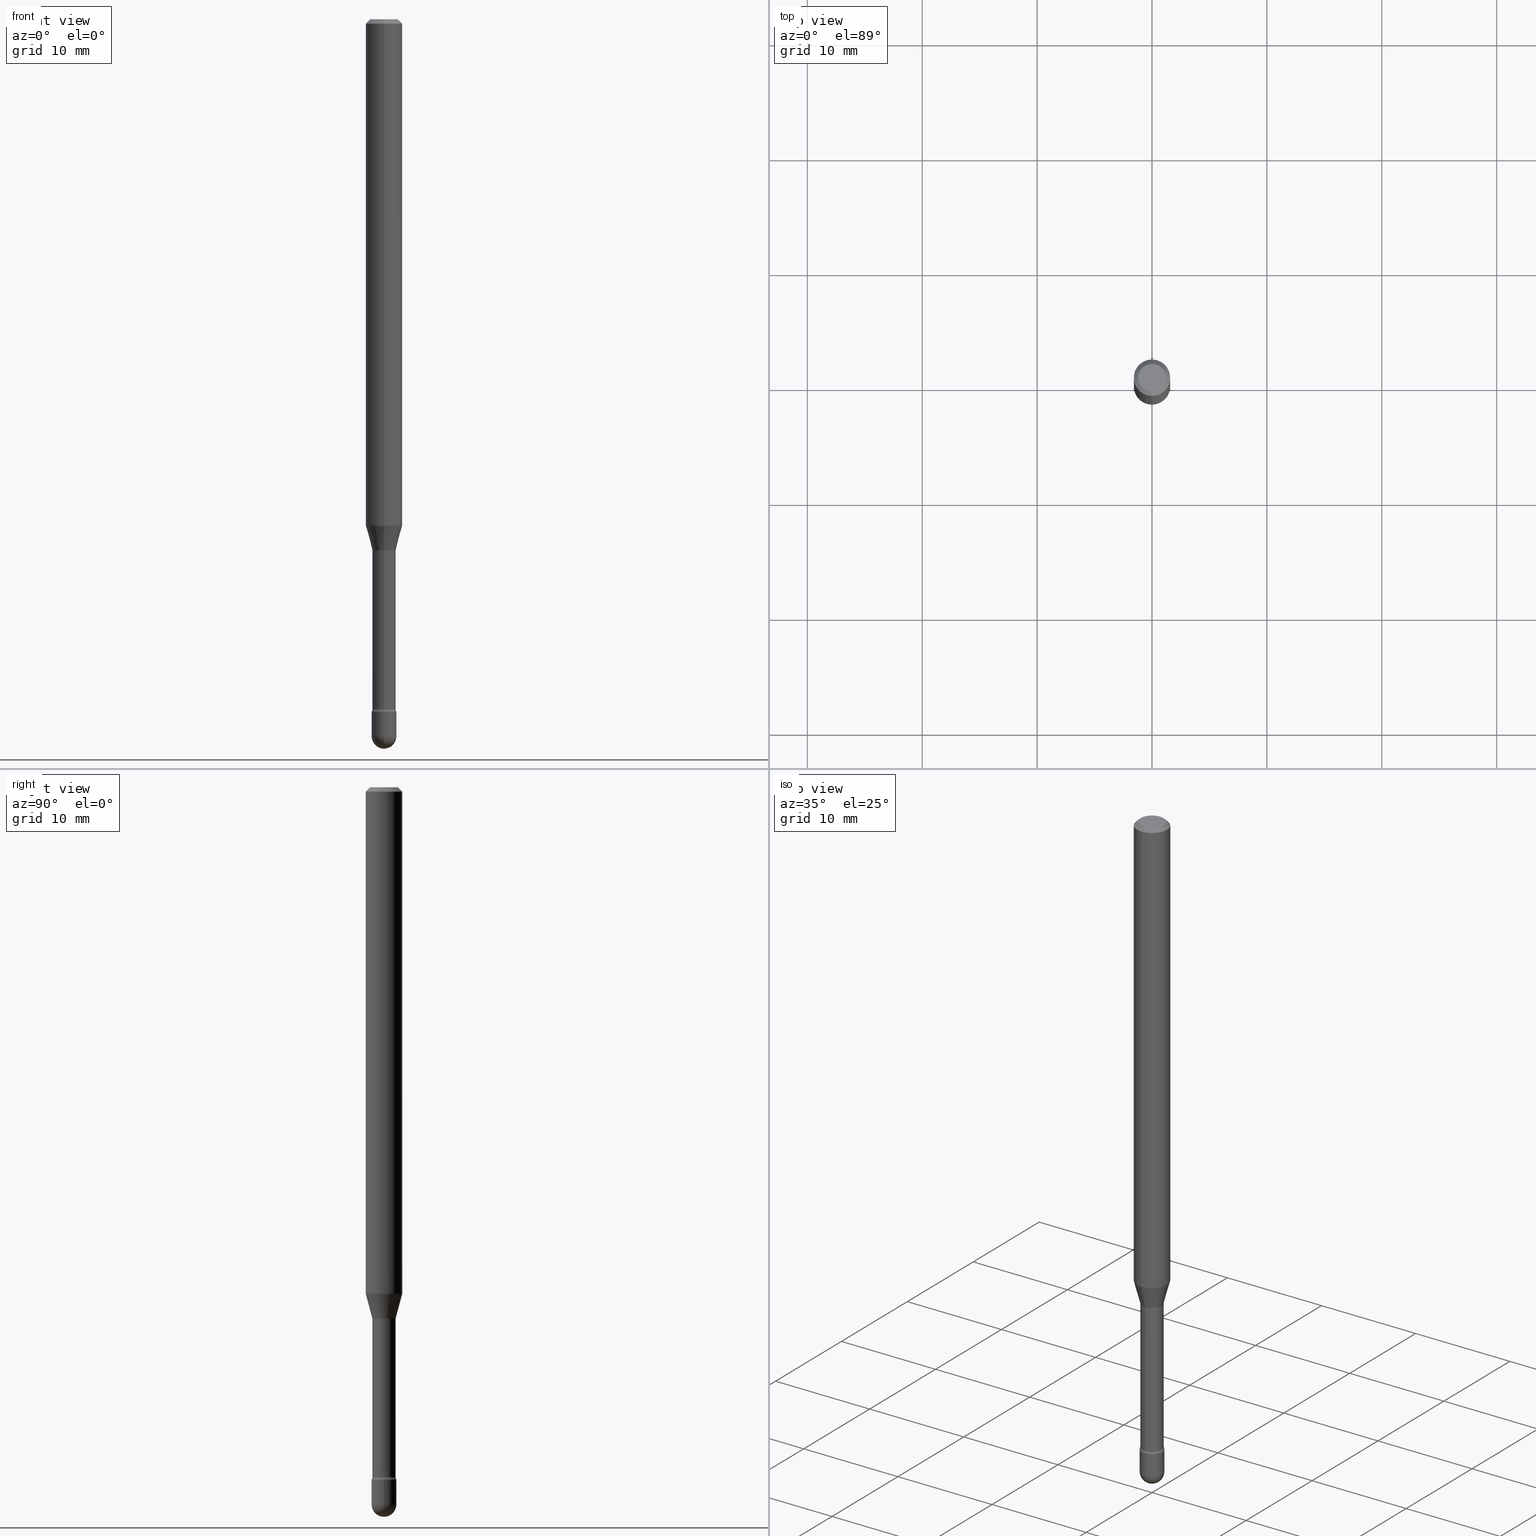
[diagram: canonical four-view strip — front | top / right | iso, engineering-drawing reading convention]
A machine part, canonical four-view strip (front | top / right | iso — engineering-drawing reading convention). The complete STEP part file that produces these views, byte-faithful:
ISO-10303-21;
HEADER;
FILE_DESCRIPTION (( 'STEP AP203' ),
    '1' );
FILE_NAME ('03878.STEP',
    '2024-04-09T20:54:38',
    ( '' ),
    ( '' ),
    'SwSTEP 2.0',
    'SolidWorks 2023',
    '' );
FILE_SCHEMA (( 'CONFIG_CONTROL_DESIGN' ));
ENDSEC;

DATA;
#1 = DIRECTION ( 'NONE',  ( 6.982962677686265922E-15, 1.000000000000000000, -3.491429772909851557E-15 ) ) ;
#2 = EDGE_CURVE ( 'NONE', #259, #158, #44, .T. ) ;
#3 = ORIENTED_EDGE ( 'NONE', *, *, #367, .T. ) ;
#4 = CARTESIAN_POINT ( 'NONE',  ( 6.115489243827347903E-29, -8.726100972659677042E-15, -2.500000000000000000 ) ) ;
#5 = ADVANCED_FACE ( 'NONE', ( #201 ), #177, .F. ) ;
#6 = ORIENTED_EDGE ( 'NONE', *, *, #47, .F. ) ;
#7 = DIRECTION ( 'NONE',  ( 1.000000000000000000, -6.982962677686265922E-15, 4.883557194083112340E-29 ) ) ;
#8 = EDGE_LOOP ( 'NONE', ( #306, #489, #99, #366 ) ) ;
#9 = LENGTH_MEASURE_WITH_UNIT ( LENGTH_MEASURE( 0.02539999999999999897 ), #480 );
#10 = CIRCLE ( 'NONE', #418, 0.04749999999999999362 ) ;
#11 = VECTOR ( 'NONE', #263, 39.37007874015748143 ) ;
#12 = COORDINATED_UNIVERSAL_TIME_OFFSET ( 5, 0, .BEHIND. ) ;
#13 = LINE ( 'NONE', #171, #104 ) ;
#14 = ORIENTED_EDGE ( 'NONE', *, *, #247, .T. ) ;
#15 = DIMENSIONAL_EXPONENTS ( 1.000000000000000000, 0.000000000000000000, 0.000000000000000000, 0.000000000000000000, 0.000000000000000000, 0.000000000000000000, 0.000000000000000000 ) ;
#16 = CC_DESIGN_PERSON_AND_ORGANIZATION_ASSIGNMENT ( #528, #354, ( #322 ) ) ;
#17 = MANIFOLD_SOLID_BREP ( 'Body-Move/Copy2[1]', #286 ) ;
#18 = DIRECTION ( 'NONE',  ( 7.105427357601001859E-15, 1.000000000000000000, 0.000000000000000000 ) ) ;
#19 = CARTESIAN_POINT ( 'NONE',  ( 0.04250000000000000999, -8.727830476773152219E-15, -2.457500000000000018 ) ) ;
#20 = ORIENTED_EDGE ( 'NONE', *, *, #247, .F. ) ;
#21 = DIRECTION ( 'NONE',  ( -2.445504814483899766E-29, 3.491429772909851557E-15, 1.000000000000000000 ) ) ;
#22 = CARTESIAN_POINT ( 'NONE',  ( 6.009739591199973545E-29, -8.580315390207031617E-15, -2.457500000000000018 ) ) ;
#23 = VERTEX_POINT ( 'NONE', #321 ) ;
#24 = AXIS2_PLACEMENT_3D ( 'NONE', #111, #195, #453 ) ;
#25 = MANIFOLD_SOLID_BREP ( 'Body-Move/Copy2[2]', #115 ) ;
#26 = ORIENTED_EDGE ( 'NONE', *, *, #70, .T. ) ;
#27 = SPHERICAL_SURFACE ( 'NONE', #289, 0.04249999999999994754 ) ;
#28 = DIRECTION ( 'NONE',  ( -2.445468806185136597E-29, 3.491481338843145583E-15, 1.000000000000000000 ) ) ;
#29 = EDGE_CURVE ( 'NONE', #450, #174, #82, .T. ) ;
#30 = DIRECTION ( 'NONE',  ( -1.000000000000000000, 6.982962677686265922E-15, -4.883557194083112340E-29 ) ) ;
#31 = CIRCLE ( 'NONE', #244, 0.04249999999999999611 ) ;
#32 = DIRECTION ( 'NONE',  ( -2.445468806185136597E-29, 3.491481338843145583E-15, 1.000000000000000000 ) ) ;
#33 = CARTESIAN_POINT ( 'NONE',  ( 4.245010590049123463E-29, -6.060571327700693261E-15, -1.735842254289322373 ) ) ;
#34 = ADVANCED_FACE ( 'NONE', ( #237 ), #154, .T. ) ;
#35 = ORIENTED_EDGE ( 'NONE', *, *, #506, .T. ) ;
#36 = CARTESIAN_POINT ( 'NONE',  ( -1.169113584055446105E-44, 1.669184350826100908E-30, 4.780733988912460139E-16 ) ) ;
#37 = AXIS2_PLACEMENT_3D ( 'NONE', #256, #221, #390 ) ;
#38 = AXIS2_PLACEMENT_3D ( 'NONE', #382, #164, #129 ) ;
#39 = CALENDAR_DATE ( 2024, 9, 4 ) ;
#40 = VERTEX_POINT ( 'NONE', #548 ) ;
#41 = COORDINATED_UNIVERSAL_TIME_OFFSET ( 5, 0, .BEHIND. ) ;
#42 = EDGE_CURVE ( 'NONE', #179, #23, #428, .T. ) ;
#43 = LINE ( 'NONE', #424, #566 ) ;
#44 = CIRCLE ( 'NONE', #359, 0.04249999999999999611 ) ;
#45 = AXIS2_PLACEMENT_3D ( 'NONE', #176, #86, #426 ) ;
#46 = CIRCLE ( 'NONE', #555, 0.04250000000000000999 ) ;
#47 = EDGE_CURVE ( 'NONE', #469, #492, #260, .T. ) ;
#48 = DIRECTION ( 'NONE',  ( -2.445504814483899766E-29, 3.491429772909851557E-15, 1.000000000000000000 ) ) ;
#49 =( CONVERSION_BASED_UNIT ( 'INCH', #9 ) LENGTH_UNIT ( ) NAMED_UNIT ( #15 ) );
#50 = DIRECTION ( 'NONE',  ( 1.000000000000000000, -6.982962677686276177E-15, 0.000000000000000000 ) ) ;
#51 = ORIENTED_EDGE ( 'NONE', *, *, #301, .F. ) ;
#52 = CARTESIAN_POINT ( 'NONE',  ( 2.023814699000571221E-45, -2.888893509381744953E-31, -8.274948145337680519E-17 ) ) ;
#53 = CALENDAR_DATE ( 2024, 9, 4 ) ;
#54 = LINE ( 'NONE', #355, #394 ) ;
#55 = AXIS2_PLACEMENT_3D ( 'NONE', #153, #493, #549 ) ;
#56 = VERTEX_POINT ( 'NONE', #285 ) ;
#57 = AXIS2_PLACEMENT_3D ( 'NONE', #357, #347, #474 ) ;
#59 = CARTESIAN_POINT ( 'NONE',  ( 3.019806626981004834E-16, 0.04249999999999171107, -2.372000000000000330 ) ) ;
#58 = LOCAL_TIME ( 16, 54, 38.00000000000000000, #511 ) ;
#60 = DIRECTION ( 'NONE',  ( -2.445468806185136597E-29, 3.491481338843145583E-15, 1.000000000000000000 ) ) ;
#61 = CARTESIAN_POINT ( 'NONE',  ( -1.169113584055446105E-44, 1.669184350826100908E-30, 4.780733988912460139E-16 ) ) ;
#62 = EDGE_LOOP ( 'NONE', ( #396, #515, #524, #434 ) ) ;
#63 = CARTESIAN_POINT ( 'NONE',  ( 4.446153966297855520E-29, -6.347742290644244223E-15, -1.818092501787273330 ) ) ;
#64 = DIRECTION ( 'NONE',  ( -6.982962677686265133E-15, -1.000000000000000000, 3.491429772909850768E-15 ) ) ;
#65 = DIRECTION ( 'NONE',  ( -6.982962677686266711E-15, -1.000000000000000000, 3.491429772909852346E-15 ) ) ;
#66 = ORIENTED_EDGE ( 'NONE', *, *, #208, .F. ) ;
#67 = AXIS2_PLACEMENT_3D ( 'NONE', #284, #502, #246 ) ;
#68 = APPROVAL_PERSON_ORGANIZATION ( #341, #220, #332 ) ;
#69 = CARTESIAN_POINT ( 'NONE',  ( -0.04250000000000000999, -8.129073900273444693E-15, -2.457500000000000018 ) ) ;
#70 = EDGE_CURVE ( 'NONE', #56, #179, #497, .T. ) ;
#71 = ORIENTED_EDGE ( 'NONE', *, *, #404, .T. ) ;
#72 = ORIENTED_EDGE ( 'NONE', *, *, #501, .F. ) ;
#73 = EDGE_CURVE ( 'NONE', #471, #56, #564, .T. ) ;
#74 = DIRECTION ( 'NONE',  ( 1.000000000000000000, -7.105427357601001070E-15, 4.926314877041531019E-29 ) ) ;
#75 = EDGE_CURVE ( 'NONE', #174, #450, #203, .T. ) ;
#76 = DIRECTION ( 'NONE',  ( -1.000000000000000000, 7.105427357601001070E-15, -4.926315508542082329E-29 ) ) ;
#77 = CIRCLE ( 'NONE', #299, 0.01499999999999999424 ) ;
#78 = DIRECTION ( 'NONE',  ( 7.105427357601001859E-15, 1.000000000000000000, 0.000000000000000000 ) ) ;
#79 = DIRECTION ( 'NONE',  ( -2.445468806185136597E-29, 3.491481338843145583E-15, 1.000000000000000000 ) ) ;
#80 = CARTESIAN_POINT ( 'NONE',  ( -1.169113584055446105E-44, 1.669184350826100908E-30, 4.780733988912460139E-16 ) ) ;
#81 = EDGE_CURVE ( 'NONE', #391, #87, #114, .T. ) ;
#82 = CIRCLE ( 'NONE', #280, 0.06250000000000000000 ) ;
#83 = DATE_TIME_ROLE ( 'creation_date' ) ;
#84 = CARTESIAN_POINT ( 'NONE',  ( -3.019806626979822035E-16, -0.04250000000000855871, -2.457500000000000018 ) ) ;
#85 = CARTESIAN_POINT ( 'NONE',  ( -4.364351673553916201E-16, -0.06250000000000000000, 6.962877596981117363E-16 ) ) ;
#86 = DIRECTION ( 'NONE',  ( -2.445468806185136597E-29, 3.491481338843145583E-15, 1.000000000000000000 ) ) ;
#87 = VERTEX_POINT ( 'NONE', #550 ) ;
#88 = ORIENTED_EDGE ( 'NONE', *, *, #287, .F. ) ;
#89 = EDGE_CURVE ( 'NONE', #402, #475, #463, .T. ) ;
#90 = DIRECTION ( 'NONE',  ( -1.000000000000000000, 6.982962677686265922E-15, -4.883557194083112340E-29 ) ) ;
#91 = AXIS2_PLACEMENT_3D ( 'NONE', #507, #32, #198 ) ;
#92 = AXIS2_PLACEMENT_3D ( 'NONE', #145, #362, #541 ) ;
#93 = CARTESIAN_POINT ( 'NONE',  ( 3.668257221725869898E-31, -5.237144659364806746E-17, -0.01500000000000008271 ) ) ;
#94 = DIRECTION ( 'NONE',  ( -6.982962677686266711E-15, -1.000000000000000000, 0.000000000000000000 ) ) ;
#95 = ORIENTED_EDGE ( 'NONE', *, *, #525, .F. ) ;
#96 = PERSON_AND_ORGANIZATION_ROLE ( 'creator' ) ;
#97 = DIRECTION ( 'NONE',  ( -1.807323732225328562E-15, -0.2588190451025179639, 0.9659258262890690894 ) ) ;
#98 = EDGE_CURVE ( 'NONE', #308, #460, #486, .T. ) ;
#99 = ORIENTED_EDGE ( 'NONE', *, *, #269, .T. ) ;
#100 = FACE_OUTER_BOUND ( 'NONE', #438, .T. ) ;
#101 = LINE ( 'NONE', #273, #448 ) ;
#102 = EDGE_LOOP ( 'NONE', ( #518, #422 ) ) ;
#103 = AXIS2_PLACEMENT_3D ( 'NONE', #265, #482, #529 ) ;
#104 = VECTOR ( 'NONE', #344, 39.37007874015748143 ) ;
#105 = DIRECTION ( 'NONE',  ( -6.982962677686265922E-15, -1.000000000000000000, 3.483106191921935554E-15 ) ) ;
#106 = ORIENTED_EDGE ( 'NONE', *, *, #169, .T. ) ;
#107 = ORIENTED_EDGE ( 'NONE', *, *, #328, .F. ) ;
#108 = EDGE_CURVE ( 'NONE', #475, #151, #350, .T. ) ;
#109 = DIRECTION ( 'NONE',  ( -2.445504814483899766E-29, 3.491429772909851557E-15, 1.000000000000000000 ) ) ;
#110 = AXIS2_PLACEMENT_3D ( 'NONE', #314, #488, #234 ) ;
#111 = CARTESIAN_POINT ( 'NONE',  ( 5.780192113673480765E-29, -8.252582428684399354E-15, -2.363633549139569467 ) ) ;
#112 = CC_DESIGN_PERSON_AND_ORGANIZATION_ASSIGNMENT ( #137, #250, ( #527 ) ) ;
#113 = CARTESIAN_POINT ( 'NONE',  ( 5.800737419955810236E-29, -8.281671421342168803E-15, -2.371999999999999886 ) ) ;
#114 = LINE ( 'NONE', #544, #170 ) ;
#115 = CLOSED_SHELL ( 'NONE', ( #152, #462, #304, #552, #535, #119, #202, #34, #457, #365, #560, #5, #127, #490 ) ) ;
#116 = CIRCLE ( 'NONE', #92, 0.04249999999999999611 ) ;
#117 = ORIENTED_EDGE ( 'NONE', *, *, #42, .T. ) ;
#118 = COORDINATED_UNIVERSAL_TIME_OFFSET ( 5, 0, .BEHIND. ) ;
#119 = ADVANCED_FACE ( 'NONE', ( #386 ), #197, .T. ) ;
#120 = APPROVAL ( #291, 'UNSPECIFIED' ) ;
#121 = EDGE_LOOP ( 'NONE', ( #356, #239, #3, #51 ) ) ;
#122 = DIRECTION ( 'NONE',  ( -2.445468806185136877E-29, 3.491481338843145188E-15, 1.000000000000000000 ) ) ;
#123 = AXIS2_PLACEMENT_3D ( 'NONE', #61, #311, #483 ) ;
#124 = CC_DESIGN_SECURITY_CLASSIFICATION ( #527, ( #178 ) ) ;
#125 = PERSON_AND_ORGANIZATION ( #248, #226 ) ;
#126 = ORIENTED_EDGE ( 'NONE', *, *, #108, .F. ) ;
#127 = ADVANCED_FACE ( 'NONE', ( #142 ), #146, .T. ) ;
#128 = ORIENTED_EDGE ( 'NONE', *, *, #525, .T. ) ;
#129 = DIRECTION ( 'NONE',  ( -6.982962677686265922E-15, -1.000000000000000000, 3.483106191921935554E-15 ) ) ;
#130 = PLANE ( 'NONE',  #361 ) ;
#131 = DIRECTION ( 'NONE',  ( -6.982962677686265922E-15, -1.000000000000000000, 6.751786635945950546E-15 ) ) ;
#132 = FACE_OUTER_BOUND ( 'NONE', #388, .T. ) ;
#133 = DIRECTION ( 'NONE',  ( -2.445468806185136597E-29, 3.491481338843145583E-15, 1.000000000000000000 ) ) ;
#134 = CIRCLE ( 'NONE', #57, 0.01500000000000002720 ) ;
#135 = APPROVAL_PERSON_ORGANIZATION ( #125, #120, #556 ) ;
#136 = ORIENTED_EDGE ( 'NONE', *, *, #108, .T. ) ;
#137 = PERSON_AND_ORGANIZATION ( #248, #226 ) ;
#138 = DIRECTION ( 'NONE',  ( -2.445504814483899766E-29, 3.491429772909851557E-15, 1.000000000000000000 ) ) ;
#139 = ORIENTED_EDGE ( 'NONE', *, *, #140, .F. ) ;
#140 = EDGE_CURVE ( 'NONE', #460, #450, #101, .T. ) ;
#141 = CARTESIAN_POINT ( 'NONE',  ( 3.840629472727447874E-16, 0.04749999999999999362, -2.485923956665947374E-16 ) ) ;
#142 = FACE_OUTER_BOUND ( 'NONE', #121, .T. ) ;
#143 = VERTEX_POINT ( 'NONE', #229 ) ;
#144 = CARTESIAN_POINT ( 'NONE',  ( -2.825384392229684454E-16, -0.04046111260567033380, -1.818092501787273108 ) ) ;
#145 = CARTESIAN_POINT ( 'NONE',  ( 5.800737419955810236E-29, -8.281671421342168803E-15, -2.371999999999999886 ) ) ;
#146 = CYLINDRICAL_SURFACE ( 'NONE', #123, 0.03995000000000004103 ) ;
#147 = ORIENTED_EDGE ( 'NONE', *, *, #506, .F. ) ;
#148 = AXIS2_PLACEMENT_3D ( 'NONE', #430, #48, #389 ) ;
#149 = DIRECTION ( 'NONE',  ( -2.445504814483899766E-29, 3.491429772909851557E-15, 1.000000000000000000 ) ) ;
#150 = VECTOR ( 'NONE', #194, 39.37007874015748143 ) ;
#151 = VERTEX_POINT ( 'NONE', #19 ) ;
#152 = ADVANCED_FACE ( 'NONE', ( #186 ), #253, .F. ) ;
#153 = CARTESIAN_POINT ( 'NONE',  ( 0.000000000000000000, 0.000000000000000000, 0.000000000000000000 ) ) ;
#154 = CYLINDRICAL_SURFACE ( 'NONE', #505, 0.06250000000000000000 ) ;
#155 = VECTOR ( 'NONE', #242, 39.37007874015748143 ) ;
#156 = AXIS2_PLACEMENT_3D ( 'NONE', #36, #166, #297 ) ;
#157 = CC_DESIGN_DATE_AND_TIME_ASSIGNMENT ( #292, #83, ( #322 ) ) ;
#158 = VERTEX_POINT ( 'NONE', #536 ) ;
#159 = DIRECTION ( 'NONE',  ( -2.445504814483899766E-29, 3.491429772909851557E-15, 1.000000000000000000 ) ) ;
#160 = ORIENTED_EDGE ( 'NONE', *, *, #367, .F. ) ;
#161 = AXIS2_PLACEMENT_3D ( 'NONE', #113, #327, #504 ) ;
#162 = AXIS2_PLACEMENT_3D ( 'NONE', #80, #149, #64 ) ;
#163 = EDGE_CURVE ( 'NONE', #143, #391, #10, .T. ) ;
#164 = DIRECTION ( 'NONE',  ( -2.445504814483899766E-29, 3.491429772909851557E-15, 1.000000000000000000 ) ) ;
#165 = DATE_TIME_ROLE ( 'classification_date' ) ;
#166 = DIRECTION ( 'NONE',  ( -2.445504814483899766E-29, 3.491429772909851557E-15, 1.000000000000000000 ) ) ;
#167 = CALENDAR_DATE ( 2024, 9, 4 ) ;
#168 = CARTESIAN_POINT ( 'NONE',  ( -2.789693589735218069E-16, -0.03995000000000637624, -1.821974787463811030 ) ) ;
#169 = EDGE_CURVE ( 'NONE', #460, #308, #324, .T. ) ;
#170 = VECTOR ( 'NONE', #326, 39.37007874015748143 ) ;
#171 = CARTESIAN_POINT ( 'NONE',  ( -2.789693589735665748E-16, -0.03995000000000004103, 6.175560183189947487E-16 ) ) ;
#172 = LINE ( 'NONE', #343, #11 ) ;
#173 = CARTESIAN_POINT ( 'NONE',  ( 3.316907271900976096E-16, 0.04749999999999999362, 3.181904450571665367E-17 ) ) ;
#174 = VERTEX_POINT ( 'NONE', #252 ) ;
#175 = CARTESIAN_POINT ( 'NONE',  ( 6.009739591199973545E-29, -8.580315390207031617E-15, -2.457500000000000018 ) ) ;
#176 = CARTESIAN_POINT ( 'NONE',  ( 6.009739591199973545E-29, -8.580315390207031617E-15, -2.457500000000000018 ) ) ;
#177 = TOROIDAL_SURFACE ( 'NONE', #24, 0.05495000000000006130, 0.01499999999999999424 ) ;
#178 = PRODUCT_DEFINITION_FORMATION_WITH_SPECIFIED_SOURCE ( 'ANY', '', #319, .NOT_KNOWN. ) ;
#179 = VERTEX_POINT ( 'NONE', #59 ) ;
#180 = APPROVAL ( #182, 'UNSPECIFIED' ) ;
#181 = CARTESIAN_POINT ( 'NONE',  ( 6.009739591199973545E-29, -8.580315390207031617E-15, -2.457500000000000018 ) ) ;
#182 = APPROVAL_STATUS ( 'not_yet_approved' ) ;
#183 = DIRECTION ( 'NONE',  ( 1.000000000000000000, -6.982962677686273810E-15, 0.000000000000000000 ) ) ;
#184 = EDGE_LOOP ( 'NONE', ( #484, #214, #6, #160 ) ) ;
#185 = PLANE ( 'NONE',  #288 ) ;
#186 = FACE_OUTER_BOUND ( 'NONE', #278, .T. ) ;
#187 = ORIENTED_EDGE ( 'NONE', *, *, #501, .T. ) ;
#188 = EDGE_CURVE ( 'NONE', #56, #492, #398, .T. ) ;
#189 = ORIENTED_EDGE ( 'NONE', *, *, #75, .T. ) ;
#190 = AXIS2_PLACEMENT_3D ( 'NONE', #346, #521, #131 ) ;
#191 = APPLICATION_PROTOCOL_DEFINITION ( 'international standard', 'config_control_design', 1994, #199 ) ;
#192 = AXIS2_PLACEMENT_3D ( 'NONE', #181, #76, #258 ) ;
#193 = ORIENTED_EDGE ( 'NONE', *, *, #287, .T. ) ;
#194 = DIRECTION ( 'NONE',  ( -4.851104656540964275E-15, -0.7071067811865500152, -0.7071067811865450192 ) ) ;
#195 = DIRECTION ( 'NONE',  ( -2.445504814483899766E-29, 3.491429772909851557E-15, 1.000000000000000000 ) ) ;
#196 = ORIENTED_EDGE ( 'NONE', *, *, #275, .T. ) ;
#197 = CONICAL_SURFACE ( 'NONE', #190, 0.04046111260566398471, 0.2617993877991500740 ) ;
#198 = DIRECTION ( 'NONE',  ( 1.000000000000000000, -6.982962677686273810E-15, 0.000000000000000000 ) ) ;
#199 = APPLICATION_CONTEXT ( 'configuration controlled 3d designs of mechanical parts and assemblies' ) ;
#200 = DIRECTION ( 'NONE',  ( -2.445504814483899766E-29, 3.491429772909851557E-15, 1.000000000000000000 ) ) ;
#201 = FACE_OUTER_BOUND ( 'NONE', #8, .T. ) ;
#202 = ADVANCED_FACE ( 'NONE', ( #377 ), #238, .T. ) ;
#203 = CIRCLE ( 'NONE', #526, 0.06250000000000000000 ) ;
#204 = AXIS2_PLACEMENT_3D ( 'NONE', #565, #79, #427 ) ;
#205 = EDGE_LOOP ( 'NONE', ( #542, #71, #342, #532 ) ) ;
#206 = DIRECTION ( 'NONE',  ( 2.445504814483899766E-29, -3.491429772909851557E-15, -1.000000000000000000 ) ) ;
#207 = DIRECTION ( 'NONE',  ( -6.982962677686265922E-15, -1.000000000000000000, 3.491429772909851557E-15 ) ) ;
#208 = EDGE_CURVE ( 'NONE', #174, #543, #466, .T. ) ;
#209 = DIRECTION ( 'NONE',  ( -2.445504814483899766E-29, 3.491429772909851557E-15, 1.000000000000000000 ) ) ;
#210 = DIRECTION ( 'NONE',  ( -2.445504814483899766E-29, 3.491429772909851557E-15, 1.000000000000000000 ) ) ;
#211 = AXIS2_PLACEMENT_3D ( 'NONE', #307, #436, #18 ) ;
#212 = AXIS2_PLACEMENT_3D ( 'NONE', #387, #7, #213 ) ;
#213 = DIRECTION ( 'NONE',  ( 6.982962677686265133E-15, 1.000000000000000000, 0.000000000000000000 ) ) ;
#214 = ORIENTED_EDGE ( 'NONE', *, *, #188, .T. ) ;
#215 = CARTESIAN_POINT ( 'NONE',  ( 2.023814699000571221E-45, -2.888893509381744953E-31, -8.274948145337680519E-17 ) ) ;
#216 = FACE_OUTER_BOUND ( 'NONE', #373, .T. ) ;
#217 = ADVANCED_BREP_SHAPE_REPRESENTATION ( '03878', ( #17, #25, #55 ), #325 ) ;
#218 = CARTESIAN_POINT ( 'NONE',  ( 3.657913531387045124E-16, 0.04046111260565763562, -1.818092501787273552 ) ) ;
#219 = DIRECTION ( 'NONE',  ( -6.982962677686265922E-15, -1.000000000000000000, 3.491429772909851557E-15 ) ) ;
#220 = APPROVAL ( #223, 'UNSPECIFIED' ) ;
#221 = DIRECTION ( 'NONE',  ( -2.445504814483899766E-29, 3.491429772909851557E-15, 1.000000000000000000 ) ) ;
#222 = ORIENTED_EDGE ( 'NONE', *, *, #371, .F. ) ;
#223 = APPROVAL_STATUS ( 'not_yet_approved' ) ;
#224 = DIRECTION ( 'NONE',  ( 1.000000000000000000, -6.982962677686273810E-15, 0.000000000000000000 ) ) ;
#225 = AXIS2_PLACEMENT_3D ( 'NONE', #175, #133, #224 ) ;
#226 = ORGANIZATION ( 'UNSPECIFIED', 'UNSPECIFIED', '' ) ;
#227 = ORIENTED_EDGE ( 'NONE', *, *, #310, .F. ) ;
#228 = LINE ( 'NONE', #144, #360 ) ;
#229 = CARTESIAN_POINT ( 'NONE',  ( -3.773273898774340269E-16, -0.04749999999999999362, 8.309343275984115167E-17 ) ) ;
#230 = APPLICATION_CONTEXT ( 'configuration controlled 3d designs of mechanical parts and assemblies' ) ;
#231 = EDGE_LOOP ( 'NONE', ( #227, #26, #117, #290 ) ) ;
#232 =( NAMED_UNIT ( * ) SI_UNIT ( $, .STERADIAN. ) SOLID_ANGLE_UNIT ( ) );
#233 = EDGE_CURVE ( 'NONE', #151, #40, #369, .T. ) ;
#234 = DIRECTION ( 'NONE',  ( -6.982962677686265922E-15, -1.000000000000000000, 3.491429772909851557E-15 ) ) ;
#235 = ORIENTED_EDGE ( 'NONE', *, *, #345, .F. ) ;
#236 = FACE_OUTER_BOUND ( 'NONE', #266, .T. ) ;
#237 = FACE_OUTER_BOUND ( 'NONE', #349, .T. ) ;
#238 = CONICAL_SURFACE ( 'NONE', #514, 0.04046111260566398471, 0.2617993877991500740 ) ;
#239 = ORIENTED_EDGE ( 'NONE', *, *, #310, .T. ) ;
#240 = ORIENTED_EDGE ( 'NONE', *, *, #2, .F. ) ;
#241 = EDGE_CURVE ( 'NONE', #543, #87, #554, .T. ) ;
#242 = DIRECTION ( 'NONE',  ( -2.445504814483899766E-29, 3.491429772909851557E-15, 1.000000000000000000 ) ) ;
#243 = DIRECTION ( 'NONE',  ( -6.982962677686265133E-15, -1.000000000000000000, 6.838167693777868349E-15 ) ) ;
#244 = AXIS2_PLACEMENT_3D ( 'NONE', #276, #60, #50 ) ;
#245 = AXIS2_PLACEMENT_3D ( 'NONE', #93, #337, #432 ) ;
#246 = DIRECTION ( 'NONE',  ( -6.982962677686265922E-15, -1.000000000000000000, 6.838167693777877816E-15 ) ) ;
#247 = EDGE_CURVE ( 'NONE', #158, #259, #31, .T. ) ;
#248 = PERSON ( 'UNSPECIFIED', 'UNSPECIFIED', 'UNSPECIFIED', ('UNSPECIFIED'), ('UNSPECIFIED'), ('UNSPECIFIED') ) ;
#249 = CALENDAR_DATE ( 2024, 9, 4 ) ;
#250 = PERSON_AND_ORGANIZATION_ROLE ( 'classification_officer' ) ;
#251 = CARTESIAN_POINT ( 'NONE',  ( 3.668257221725869898E-31, -5.237144659364806746E-17, -0.01500000000000008271 ) ) ;
#253 = TOROIDAL_SURFACE ( 'NONE', #110, 0.05495000000000000578, 0.01500000000000002720 ) ;
#252 = CARTESIAN_POINT ( 'NONE',  ( -4.364351673553489723E-16, -0.06250000000000602296, -1.735842254289321929 ) ) ;
#254 = CIRCLE ( 'NONE', #38, 0.06250000000000000000 ) ;
#255 = DIRECTION ( 'NONE',  ( -2.445504814483899766E-29, 3.491429772909851557E-15, 1.000000000000000000 ) ) ;
#256 = CARTESIAN_POINT ( 'NONE',  ( 4.446153966297855520E-29, -6.347742290644244223E-15, -1.818092501787273330 ) ) ;
#257 = ORIENTED_EDGE ( 'NONE', *, *, #169, .F. ) ;
#258 = DIRECTION ( 'NONE',  ( -7.105427357601001070E-15, -1.000000000000000000, 0.000000000000000000 ) ) ;
#259 = VERTEX_POINT ( 'NONE', #470 ) ;
#260 = CIRCLE ( 'NONE', #67, 0.03995000000000001328 ) ;
#261 = CIRCLE ( 'NONE', #192, 0.04249999999999994754 ) ;
#262 = DIRECTION ( 'NONE',  ( -2.445504814483899766E-29, 3.491429772909851557E-15, 1.000000000000000000 ) ) ;
#263 = DIRECTION ( 'NONE',  ( -2.445504814483899766E-29, 3.491429772909851557E-15, 1.000000000000000000 ) ) ;
#264 = ADVANCED_FACE ( 'NONE', ( #216 ), #303, .T. ) ;
#265 = CARTESIAN_POINT ( 'NONE',  ( 4.455648114611029959E-29, -6.361297018442249772E-15, -1.821974787463811252 ) ) ;
#266 = EDGE_LOOP ( 'NONE', ( #353, #553, #312, #35 ) ) ;
#267 = PERSON_AND_ORGANIZATION ( #248, #226 ) ;
#268 = CARTESIAN_POINT ( 'NONE',  ( -2.825384392229684454E-16, -0.04046111260567033380, -1.818092501787273108 ) ) ;
#269 = EDGE_CURVE ( 'NONE', #471, #23, #77, .T. ) ;
#270 = EDGE_LOOP ( 'NONE', ( #189, #128, #451, #66 ) ) ;
#271 = SPHERICAL_SURFACE ( 'NONE', #405, 0.04249999999999994754 ) ;
#272 = DIRECTION ( 'NONE',  ( -2.438088387897960049E-29, 3.491481338843145188E-15, 1.000000000000000000 ) ) ;
#273 = CARTESIAN_POINT ( 'NONE',  ( 2.874934964273040567E-16, 0.04046111260565763562, -1.818092501787273552 ) ) ;
#274 = ORIENTED_EDGE ( 'NONE', *, *, #208, .T. ) ;
#275 = EDGE_CURVE ( 'NONE', #308, #174, #228, .T. ) ;
#276 = CARTESIAN_POINT ( 'NONE',  ( 5.800652008271143730E-29, -8.281793735735941096E-15, -2.371999999999999886 ) ) ;
#277 = ORIENTED_EDGE ( 'NONE', *, *, #384, .F. ) ;
#278 = EDGE_LOOP ( 'NONE', ( #257, #363, #530, #88 ) ) ;
#279 = CARTESIAN_POINT ( 'NONE',  ( 5.780277224096484704E-29, -8.252460545714473585E-15, -2.363633549139569467 ) ) ;
#280 = AXIS2_PLACEMENT_3D ( 'NONE', #323, #456, #409 ) ;
#281 = CC_DESIGN_APPROVAL ( #120, ( #178 ) ) ;
#282 = CC_DESIGN_DATE_AND_TIME_ASSIGNMENT ( #468, #165, ( #527 ) ) ;
#283 = CARTESIAN_POINT ( 'NONE',  ( -1.169113584055446105E-44, 1.669184350826100908E-30, 4.780733988912460139E-16 ) ) ;
#284 = CARTESIAN_POINT ( 'NONE',  ( 4.455648114611029959E-29, -6.361297018442249772E-15, -1.821974787463811252 ) ) ;
#285 = CARTESIAN_POINT ( 'NONE',  ( 2.929212428171594149E-16, 0.03994999999999181151, -2.363633549139569912 ) ) ;
#286 = CLOSED_SHELL ( 'NONE', ( #264, #410, #397, #446, #546 ) ) ;
#287 = EDGE_CURVE ( 'NONE', #308, #469, #134, .T. ) ;
#288 = AXIS2_PLACEMENT_3D ( 'NONE', #173, #385, #1 ) ;
#289 = AXIS2_PLACEMENT_3D ( 'NONE', #22, #30, #513 ) ;
#290 = ORIENTED_EDGE ( 'NONE', *, *, #269, .F. ) ;
#291 = APPROVAL_STATUS ( 'not_yet_approved' ) ;
#292 = DATE_AND_TIME ( #249, #376 ) ;
#293 = CYLINDRICAL_SURFACE ( 'NONE', #156, 0.06250000000000000000 ) ;
#294 = CYLINDRICAL_SURFACE ( 'NONE', #162, 0.03995000000000004103 ) ;
#295 = PERSON_AND_ORGANIZATION_ROLE ( 'design_supplier' ) ;
#296 = AXIS2_PLACEMENT_3D ( 'NONE', #512, #210, #339 ) ;
#297 = DIRECTION ( 'NONE',  ( -6.982962677686265922E-15, -1.000000000000000000, 3.491429772909850768E-15 ) ) ;
#298 = FACE_OUTER_BOUND ( 'NONE', #184, .T. ) ;
#299 = AXIS2_PLACEMENT_3D ( 'NONE', #534, #90, #94 ) ;
#300 = LOCAL_TIME ( 16, 54, 38.00000000000000000, #12 ) ;
#301 = EDGE_CURVE ( 'NONE', #492, #469, #439, .T. ) ;
#302 = ORIENTED_EDGE ( 'NONE', *, *, #371, .T. ) ;
#303 = CYLINDRICAL_SURFACE ( 'NONE', #375, 0.04250000000000000999 ) ;
#304 = ADVANCED_FACE ( 'NONE', ( #399 ), #315, .F. ) ;
#305 = DIRECTION ( 'NONE',  ( -2.445468806185136597E-29, 3.491481338843145583E-15, 1.000000000000000000 ) ) ;
#306 = ORIENTED_EDGE ( 'NONE', *, *, #70, .F. ) ;
#307 = CARTESIAN_POINT ( 'NONE',  ( 3.904432333002196639E-16, 0.05494999999999364976, -1.821974787463811474 ) ) ;
#308 = VERTEX_POINT ( 'NONE', #268 ) ;
#309 = DIRECTION ( 'NONE',  ( -2.445468806185136597E-29, 3.491481338843145583E-15, 1.000000000000000000 ) ) ;
#310 = EDGE_CURVE ( 'NONE', #56, #471, #383, .T. ) ;
#311 = DIRECTION ( 'NONE',  ( -2.445504814483899766E-29, 3.491429772909851557E-15, 1.000000000000000000 ) ) ;
#312 = ORIENTED_EDGE ( 'NONE', *, *, #81, .T. ) ;
#313 = CARTESIAN_POINT ( 'NONE',  ( 3.668257221725869898E-31, -5.237144659364806746E-17, -0.01500000000000008271 ) ) ;
#314 = CARTESIAN_POINT ( 'NONE',  ( 4.455582508398544114E-29, -6.361390970272603150E-15, -1.821974787463811252 ) ) ;
#315 = TOROIDAL_SURFACE ( 'NONE', #412, 0.05495000000000006130, 0.01499999999999999424 ) ;
#316 = CC_DESIGN_APPROVAL ( #220, ( #322 ) ) ;
#317 = ORIENTED_EDGE ( 'NONE', *, *, #233, .T. ) ;
#318 = DIRECTION ( 'NONE',  ( -1.000000000000000000, 6.982962677686265922E-15, -4.883557194083112340E-29 ) ) ;
#319 = PRODUCT ( '03878', '03878', '', ( #500 ) ) ;
#320 = EDGE_LOOP ( 'NONE', ( #413, #400 ) ) ;
#321 = CARTESIAN_POINT ( 'NONE',  ( -2.967759138016082257E-16, -0.04250000000000827421, -2.371999999999999886 ) ) ;
#322 = PRODUCT_DEFINITION ( 'UNKNOWN', '', #178, #414 ) ;
#323 = CARTESIAN_POINT ( 'NONE',  ( 4.245010590049123463E-29, -6.060571327700693261E-15, -1.735842254289322373 ) ) ;
#324 = CIRCLE ( 'NONE', #392, 0.04046111260566398471 ) ;
#325 =( GEOMETRIC_REPRESENTATION_CONTEXT ( 3 ) GLOBAL_UNCERTAINTY_ASSIGNED_CONTEXT ( ( #481 ) ) GLOBAL_UNIT_ASSIGNED_CONTEXT ( ( #49, #533, #232 ) ) REPRESENTATION_CONTEXT ( 'NONE', 'WORKASPACE' ) );
#326 = DIRECTION ( 'NONE',  ( 4.937700262164548042E-15, 0.7071067811865451302, -0.7071067811865499042 ) ) ;
#327 = DIRECTION ( 'NONE',  ( -2.445504814483899766E-29, 3.491429772909851557E-15, 1.000000000000000000 ) ) ;
#328 = EDGE_CURVE ( 'NONE', #329, #40, #454, .T. ) ;
#329 = VERTEX_POINT ( 'NONE', #4 ) ;
#330 = AXIS2_PLACEMENT_3D ( 'NONE', #452, #74, #78 ) ;
#331 = AXIS2_PLACEMENT_3D ( 'NONE', #52, #21, #65 ) ;
#332 = APPROVAL_ROLE ( '' ) ;
#333 = CARTESIAN_POINT ( 'NONE',  ( -4.364351673553912750E-16, -0.06250000000000005551, -0.01499999999999986587 ) ) ;
#334 = DATE_AND_TIME ( #53, #300 ) ;
#335 = ORIENTED_EDGE ( 'NONE', *, *, #384, .T. ) ;
#336 = CARTESIAN_POINT ( 'NONE',  ( 2.967759138017242869E-16, 0.04249999999999171801, -2.372000000000000330 ) ) ;
#337 = DIRECTION ( 'NONE',  ( 2.445504814483899766E-29, -3.491429772909851557E-15, -1.000000000000000000 ) ) ;
#338 = APPROVAL_DATE_TIME ( #415, #180 ) ;
#339 = DIRECTION ( 'NONE',  ( -6.982962677686265922E-15, -1.000000000000000000, 3.491429772909851557E-15 ) ) ;
#340 = AXIS2_PLACEMENT_3D ( 'NONE', #313, #262, #105 ) ;
#341 = PERSON_AND_ORGANIZATION ( #248, #226 ) ;
#342 = ORIENTED_EDGE ( 'NONE', *, *, #241, .T. ) ;
#343 = CARTESIAN_POINT ( 'NONE',  ( 4.440892098500625669E-16, 0.06250000000000000000, 2.598590380843803409E-16 ) ) ;
#344 = DIRECTION ( 'NONE',  ( -2.445504814483899766E-29, 3.491429772909851557E-15, 1.000000000000000000 ) ) ;
#345 = EDGE_CURVE ( 'NONE', #460, #492, #539, .T. ) ;
#346 = CARTESIAN_POINT ( 'NONE',  ( 4.446153966297855520E-29, -6.347742290644244223E-15, -1.818092501787273330 ) ) ;
#347 = DIRECTION ( 'NONE',  ( -1.000000000000000000, 6.982962677686265922E-15, -4.883557194083112340E-29 ) ) ;
#348 = PRODUCT_DEFINITION_SHAPE ( 'NONE', 'NONE',  #322 ) ;
#349 = EDGE_LOOP ( 'NONE', ( #95, #445, #274, #147 ) ) ;
#350 = CIRCLE ( 'NONE', #45, 0.04250000000000000999 ) ;
#351 = APPROVAL_PERSON_ORGANIZATION ( #267, #180, #393 ) ;
#352 = DIRECTION ( 'NONE',  ( -2.445504814483899766E-29, 3.491429772909851557E-15, 1.000000000000000000 ) ) ;
#353 = ORIENTED_EDGE ( 'NONE', *, *, #404, .F. ) ;
#354 = PERSON_AND_ORGANIZATION_ROLE ( 'creator' ) ;
#355 = CARTESIAN_POINT ( 'NONE',  ( 0.04250000000000000999, -2.967759138016664042E-16, 2.072375129713273202E-30 ) ) ;
#356 = ORIENTED_EDGE ( 'NONE', *, *, #188, .F. ) ;
#357 = CARTESIAN_POINT ( 'NONE',  ( -3.837137991388157681E-16, -0.05495000000000636875, -1.821974787463811030 ) ) ;
#358 = EDGE_LOOP ( 'NONE', ( #107, #411, #558, #222 ) ) ;
#359 = AXIS2_PLACEMENT_3D ( 'NONE', #545, #28, #494 ) ;
#360 = VECTOR ( 'NONE', #97, 39.37007874015748854 ) ;
#361 = AXIS2_PLACEMENT_3D ( 'NONE', #523, #272, #440 ) ;
#362 = DIRECTION ( 'NONE',  ( -2.445504814483899766E-29, 3.491429772909851557E-15, 1.000000000000000000 ) ) ;
#363 = ORIENTED_EDGE ( 'NONE', *, *, #345, .T. ) ;
#364 = ORIENTED_EDGE ( 'NONE', *, *, #2, .T. ) ;
#365 = ADVANCED_FACE ( 'NONE', ( #395 ), #185, .F. ) ;
#366 = ORIENTED_EDGE ( 'NONE', *, *, #425, .T. ) ;
#367 = EDGE_CURVE ( 'NONE', #471, #469, #13, .T. ) ;
#368 = DIRECTION ( 'NONE',  ( -6.982962677686265922E-15, -1.000000000000000000, 3.491429772909850768E-15 ) ) ;
#369 = CIRCLE ( 'NONE', #225, 0.04250000000000000999 ) ;
#370 = CC_DESIGN_APPROVAL ( #180, ( #527 ) ) ;
#371 = EDGE_CURVE ( 'NONE', #40, #402, #46, .T. ) ;
#372 = DIRECTION ( 'NONE',  ( -6.982962677686265922E-15, -1.000000000000000000, 4.370956789862821150E-15 ) ) ;
#373 = EDGE_LOOP ( 'NONE', ( #302, #187, #240, #277, #317 ) ) ;
#374 = SECURITY_CLASSIFICATION_LEVEL ( 'unclassified' ) ;
#375 = AXIS2_PLACEMENT_3D ( 'NONE', #433, #305, #478 ) ;
#376 = LOCAL_TIME ( 16, 54, 38.00000000000000000, #118 ) ;
#377 = FACE_OUTER_BOUND ( 'NONE', #406, .T. ) ;
#378 = CC_DESIGN_PERSON_AND_ORGANIZATION_ASSIGNMENT ( #557, #295, ( #178 ) ) ;
#379 = DIRECTION ( 'NONE',  ( 6.982962677686265922E-15, 1.000000000000000000, -3.483106191921935554E-15 ) ) ;
#380 = PERSON_AND_ORGANIZATION ( #248, #226 ) ;
#381 = ORIENTED_EDGE ( 'NONE', *, *, #328, .T. ) ;
#382 = CARTESIAN_POINT ( 'NONE',  ( 3.668257221725869898E-31, -5.237144659364806746E-17, -0.01500000000000008271 ) ) ;
#383 = CIRCLE ( 'NONE', #148, 0.03995000000000006879 ) ;
#384 = EDGE_CURVE ( 'NONE', #151, #259, #54, .T. ) ;
#385 = DIRECTION ( 'NONE',  ( 2.445504814483899486E-29, -3.491429772909851557E-15, -1.000000000000000000 ) ) ;
#386 = FACE_OUTER_BOUND ( 'NONE', #62, .T. ) ;
#387 = CARTESIAN_POINT ( 'NONE',  ( 6.009739591199973545E-29, -8.580315390207031617E-15, -2.457500000000000018 ) ) ;
#388 = EDGE_LOOP ( 'NONE', ( #235, #431, #193, #447 ) ) ;
#389 = DIRECTION ( 'NONE',  ( -6.982962677686265133E-15, -1.000000000000000000, 6.838167693777868349E-15 ) ) ;
#390 = DIRECTION ( 'NONE',  ( -6.982962677686265922E-15, -1.000000000000000000, 6.751786635945950546E-15 ) ) ;
#391 = VERTEX_POINT ( 'NONE', #141 ) ;
#392 = AXIS2_PLACEMENT_3D ( 'NONE', #63, #209, #458 ) ;
#393 = APPROVAL_ROLE ( '' ) ;
#394 = VECTOR ( 'NONE', #531, 39.37007874015748143 ) ;
#395 = FACE_OUTER_BOUND ( 'NONE', #102, .T. ) ;
#396 = ORIENTED_EDGE ( 'NONE', *, *, #98, .T. ) ;
#397 = ADVANCED_FACE ( 'NONE', ( #100 ), #130, .T. ) ;
#398 = LINE ( 'NONE', #485, #155 ) ;
#399 = FACE_OUTER_BOUND ( 'NONE', #231, .T. ) ;
#400 = ORIENTED_EDGE ( 'NONE', *, *, #42, .F. ) ;
#401 = CARTESIAN_POINT ( 'NONE',  ( 4.440892098501052147E-16, 0.06249999999999397010, -1.735842254289322595 ) ) ;
#402 = VERTEX_POINT ( 'NONE', #69 ) ;
#403 = CARTESIAN_POINT ( 'NONE',  ( -4.287811248607203282E-16, -0.06250000000000005551, -0.01499999999999986587 ) ) ;
#404 = EDGE_CURVE ( 'NONE', #143, #543, #491, .T. ) ;
#405 = AXIS2_PLACEMENT_3D ( 'NONE', #407, #318, #487 ) ;
#406 = EDGE_LOOP ( 'NONE', ( #139, #106, #196, #551 ) ) ;
#407 = CARTESIAN_POINT ( 'NONE',  ( 6.009739591199973545E-29, -8.580315390207031617E-15, -2.457500000000000018 ) ) ;
#408 = EDGE_LOOP ( 'NONE', ( #72, #499, #136, #335, #20 ) ) ;
#409 = DIRECTION ( 'NONE',  ( -6.982962677686265922E-15, -1.000000000000000000, 4.370956789862821150E-15 ) ) ;
#410 = ADVANCED_FACE ( 'NONE', ( #496 ), #27, .T. ) ;
#411 = ORIENTED_EDGE ( 'NONE', *, *, #467, .T. ) ;
#412 = AXIS2_PLACEMENT_3D ( 'NONE', #444, #138, #219 ) ;
#413 = ORIENTED_EDGE ( 'NONE', *, *, #425, .F. ) ;
#414 = DESIGN_CONTEXT ( 'detailed design', #230, 'design' ) ;
#415 = DATE_AND_TIME ( #167, #58 ) ;
#416 = CC_DESIGN_PERSON_AND_ORGANIZATION_ASSIGNMENT ( #503, #421, ( #319 ) ) ;
#417 = CALENDAR_DATE ( 2024, 9, 4 ) ;
#418 = AXIS2_PLACEMENT_3D ( 'NONE', #215, #561, #443 ) ;
#419 = CYLINDRICAL_SURFACE ( 'NONE', #204, 0.04250000000000000999 ) ;
#420 = DIRECTION ( 'NONE',  ( -6.982962677686265922E-15, -1.000000000000000000, 6.751786635945950546E-15 ) ) ;
#421 = PERSON_AND_ORGANIZATION_ROLE ( 'design_owner' ) ;
#422 = ORIENTED_EDGE ( 'NONE', *, *, #163, .T. ) ;
#423 = DIRECTION ( 'NONE',  ( -2.445504814483899486E-29, 3.491429772909851557E-15, 1.000000000000000000 ) ) ;
#424 = CARTESIAN_POINT ( 'NONE',  ( -0.04250000000000000999, 3.019806626980426500E-16, -2.090547413358335560E-30 ) ) ;
#425 = EDGE_CURVE ( 'NONE', #23, #179, #116, .T. ) ;
#426 = DIRECTION ( 'NONE',  ( 1.000000000000000000, -6.982962677686273810E-15, 0.000000000000000000 ) ) ;
#427 = DIRECTION ( 'NONE',  ( 1.000000000000000000, -6.982962677686266711E-15, 4.876176775795935793E-29 ) ) ;
#428 = CIRCLE ( 'NONE', #161, 0.04249999999999999611 ) ;
#429 = CIRCLE ( 'NONE', #331, 0.04749999999999999362 ) ;
#430 = CARTESIAN_POINT ( 'NONE',  ( 5.780277224096484704E-29, -8.252460545714473585E-15, -2.363633549139569467 ) ) ;
#431 = ORIENTED_EDGE ( 'NONE', *, *, #98, .F. ) ;
#432 = DIRECTION ( 'NONE',  ( 6.982962677686265922E-15, 1.000000000000000000, -3.483106191921935554E-15 ) ) ;
#433 = CARTESIAN_POINT ( 'NONE',  ( 0.000000000000000000, 0.000000000000000000, 0.000000000000000000 ) ) ;
#434 = ORIENTED_EDGE ( 'NONE', *, *, #275, .F. ) ;
#435 = APPROVAL_DATE_TIME ( #334, #220 ) ;
#436 = DIRECTION ( 'NONE',  ( 1.000000000000000000, -7.105427357601001070E-15, 4.926314877041531019E-29 ) ) ;
#437 = PRODUCT_RELATED_PRODUCT_CATEGORY ( 'detail', '', ( #319 ) ) ;
#438 = EDGE_LOOP ( 'NONE', ( #364, #14 ) ) ;
#439 = CIRCLE ( 'NONE', #103, 0.03995000000000001328 ) ;
#440 = DIRECTION ( 'NONE',  ( 1.000000000000000000, -6.982962677686265922E-15, 4.876176775795935793E-29 ) ) ;
#441 = DIRECTION ( 'NONE',  ( 1.839019923739598738E-15, 0.2588190451025247363, 0.9659258262890673130 ) ) ;
#442 = ORIENTED_EDGE ( 'NONE', *, *, #233, .F. ) ;
#443 = DIRECTION ( 'NONE',  ( -6.982962677686266711E-15, -1.000000000000000000, 3.491429772909852346E-15 ) ) ;
#444 = CARTESIAN_POINT ( 'NONE',  ( 5.780192113673480765E-29, -8.252582428684399354E-15, -2.363633549139569467 ) ) ;
#445 = ORIENTED_EDGE ( 'NONE', *, *, #29, .T. ) ;
#446 = ADVANCED_FACE ( 'NONE', ( #495 ), #271, .T. ) ;
#447 = ORIENTED_EDGE ( 'NONE', *, *, #47, .T. ) ;
#448 = VECTOR ( 'NONE', #441, 39.37007874015748854 ) ;
#449 = LOCAL_TIME ( 16, 54, 38.00000000000000000, #459 ) ;
#450 = VERTEX_POINT ( 'NONE', #401 ) ;
#451 = ORIENTED_EDGE ( 'NONE', *, *, #241, .F. ) ;
#452 = CARTESIAN_POINT ( 'NONE',  ( 3.904432333002332224E-16, 0.05494999999999180401, -2.363633549139569912 ) ) ;
#453 = DIRECTION ( 'NONE',  ( -6.982962677686265922E-15, -1.000000000000000000, 3.491429772909851557E-15 ) ) ;
#454 = CIRCLE ( 'NONE', #212, 0.04249999999999994754 ) ;
#455 = EDGE_CURVE ( 'NONE', #391, #143, #429, .T. ) ;
#456 = DIRECTION ( 'NONE',  ( -2.445504814483899766E-29, 3.491429772909851557E-15, 1.000000000000000000 ) ) ;
#457 = ADVANCED_FACE ( 'NONE', ( #236 ), #540, .T. ) ;
#458 = DIRECTION ( 'NONE',  ( -6.982962677686265922E-15, -1.000000000000000000, 6.751786635945950546E-15 ) ) ;
#459 = COORDINATED_UNIVERSAL_TIME_OFFSET ( 5, 0, .BEHIND. ) ;
#460 = VERTEX_POINT ( 'NONE', #218 ) ;
#461 = FACE_OUTER_BOUND ( 'NONE', #205, .T. ) ;
#462 = ADVANCED_FACE ( 'NONE', ( #298 ), #294, .T. ) ;
#463 = CIRCLE ( 'NONE', #91, 0.04250000000000000999 ) ;
#464 = PLANE ( 'NONE',  #465 ) ;
#465 = AXIS2_PLACEMENT_3D ( 'NONE', #336, #423, #207 ) ;
#466 = LINE ( 'NONE', #85, #472 ) ;
#467 = EDGE_CURVE ( 'NONE', #329, #475, #261, .T. ) ;
#468 = DATE_AND_TIME ( #417, #547 ) ;
#469 = VERTEX_POINT ( 'NONE', #168 ) ;
#470 = CARTESIAN_POINT ( 'NONE',  ( 0.04249999999999999611, -8.578569649537607747E-15, -2.371999999999999886 ) ) ;
#471 = VERTEX_POINT ( 'NONE', #516 ) ;
#472 = VECTOR ( 'NONE', #352, 39.37007874015748143 ) ;
#473 = AXIS2_PLACEMENT_3D ( 'NONE', #251, #206, #379 ) ;
#474 = DIRECTION ( 'NONE',  ( -6.982962677686267499E-15, -1.000000000000000000, 0.000000000000000000 ) ) ;
#475 = VERTEX_POINT ( 'NONE', #84 ) ;
#476 = CC_DESIGN_PERSON_AND_ORGANIZATION_ASSIGNMENT ( #380, #96, ( #178 ) ) ;
#477 = APPROVAL_DATE_TIME ( #562, #120 ) ;
#478 = DIRECTION ( 'NONE',  ( 1.000000000000000000, -6.982962677686266711E-15, 4.876176775795935793E-29 ) ) ;
#479 = EDGE_LOOP ( 'NONE', ( #537, #381, #442, #126 ) ) ;
#480 =( LENGTH_UNIT ( ) NAMED_UNIT ( * ) SI_UNIT ( $, .METRE. ) );
#481 = UNCERTAINTY_MEASURE_WITH_UNIT (LENGTH_MEASURE( 1.000000000000000082E-05 ), #49, 'distance_accuracy_value', 'NONE');
#482 = DIRECTION ( 'NONE',  ( -2.445504814483899766E-29, 3.491429772909851557E-15, 1.000000000000000000 ) ) ;
#483 = DIRECTION ( 'NONE',  ( -6.982962677686265133E-15, -1.000000000000000000, 3.491429772909850768E-15 ) ) ;
#484 = ORIENTED_EDGE ( 'NONE', *, *, #73, .T. ) ;
#485 = CARTESIAN_POINT ( 'NONE',  ( 2.838618229361602665E-16, 0.03995000000000004103, 3.385907794634973778E-16 ) ) ;
#486 = CIRCLE ( 'NONE', #37, 0.04046111260566398471 ) ;
#487 = DIRECTION ( 'NONE',  ( 6.982962677686265922E-15, 1.000000000000000000, -6.427877632151215276E-15 ) ) ;
#488 = DIRECTION ( 'NONE',  ( -2.445504814483899766E-29, 3.491429772909851557E-15, 1.000000000000000000 ) ) ;
#489 = ORIENTED_EDGE ( 'NONE', *, *, #73, .F. ) ;
#490 = ADVANCED_FACE ( 'NONE', ( #132 ), #498, .F. ) ;
#491 = LINE ( 'NONE', #403, #150 ) ;
#492 = VERTEX_POINT ( 'NONE', #519 ) ;
#493 = DIRECTION ( 'NONE',  ( 0.000000000000000000, 0.000000000000000000, 1.000000000000000000 ) ) ;
#494 = DIRECTION ( 'NONE',  ( 1.000000000000000000, -6.982962677686276177E-15, 0.000000000000000000 ) ) ;
#495 = FACE_OUTER_BOUND ( 'NONE', #479, .T. ) ;
#496 = FACE_OUTER_BOUND ( 'NONE', #358, .T. ) ;
#497 = CIRCLE ( 'NONE', #330, 0.01499999999999999424 ) ;
#498 = TOROIDAL_SURFACE ( 'NONE', #296, 0.05495000000000000578, 0.01500000000000002720 ) ;
#499 = ORIENTED_EDGE ( 'NONE', *, *, #89, .T. ) ;
#500 = MECHANICAL_CONTEXT ( 'NONE', #199, 'mechanical' ) ;
#501 = EDGE_CURVE ( 'NONE', #402, #158, #43, .T. ) ;
#502 = DIRECTION ( 'NONE',  ( -2.445504814483899766E-29, 3.491429772909851557E-15, 1.000000000000000000 ) ) ;
#503 = PERSON_AND_ORGANIZATION ( #248, #226 ) ;
#504 = DIRECTION ( 'NONE',  ( -6.982962677686266711E-15, -1.000000000000000000, 6.427877632151208176E-15 ) ) ;
#505 = AXIS2_PLACEMENT_3D ( 'NONE', #283, #109, #368 ) ;
#506 = EDGE_CURVE ( 'NONE', #87, #543, #254, .T. ) ;
#507 = CARTESIAN_POINT ( 'NONE',  ( 6.009739591199973545E-29, -8.580315390207031617E-15, -2.457500000000000018 ) ) ;
#508 = APPLICATION_PROTOCOL_DEFINITION ( 'international standard', 'config_control_design', 1994, #230 ) ;
#509 = FACE_OUTER_BOUND ( 'NONE', #408, .T. ) ;
#510 = CARTESIAN_POINT ( 'NONE',  ( 4.446153966297855520E-29, -6.347742290644244223E-15, -1.818092501787273330 ) ) ;
#511 = COORDINATED_UNIVERSAL_TIME_OFFSET ( 5, 0, .BEHIND. ) ;
#512 = CARTESIAN_POINT ( 'NONE',  ( 4.455582508398544114E-29, -6.361390970272603150E-15, -1.821974787463811252 ) ) ;
#513 = DIRECTION ( 'NONE',  ( 6.982962677686265922E-15, 1.000000000000000000, -6.427877632151215276E-15 ) ) ;
#514 = AXIS2_PLACEMENT_3D ( 'NONE', #510, #255, #420 ) ;
#515 = ORIENTED_EDGE ( 'NONE', *, *, #140, .T. ) ;
#516 = CARTESIAN_POINT ( 'NONE',  ( -2.789693589735089879E-16, -0.03995000000000831913, -2.363633549139569023 ) ) ;
#517 = CONICAL_SURFACE ( 'NONE', #473, 0.06250000000000000000, 0.7853981633974483900 ) ;
#518 = ORIENTED_EDGE ( 'NONE', *, *, #455, .T. ) ;
#519 = CARTESIAN_POINT ( 'NONE',  ( 2.838618229362180999E-16, 0.03994999999999365725, -1.821974787463811474 ) ) ;
#520 = CARTESIAN_POINT ( 'NONE',  ( 6.009739591199973545E-29, -8.580315390207031617E-15, -2.457500000000000018 ) ) ;
#521 = DIRECTION ( 'NONE',  ( -2.445504814483899766E-29, 3.491429772909851557E-15, 1.000000000000000000 ) ) ;
#522 = FACE_OUTER_BOUND ( 'NONE', #270, .T. ) ;
#523 = CARTESIAN_POINT ( 'NONE',  ( 5.800652008271143730E-29, -8.281793735735941096E-15, -2.371999999999999886 ) ) ;
#524 = ORIENTED_EDGE ( 'NONE', *, *, #75, .F. ) ;
#525 = EDGE_CURVE ( 'NONE', #450, #87, #172, .T. ) ;
#526 = AXIS2_PLACEMENT_3D ( 'NONE', #33, #200, #372 ) ;
#527 = SECURITY_CLASSIFICATION ( '', '', #374 ) ;
#528 = PERSON_AND_ORGANIZATION ( #248, #226 ) ;
#529 = DIRECTION ( 'NONE',  ( -6.982962677686265922E-15, -1.000000000000000000, 6.838167693777877816E-15 ) ) ;
#530 = ORIENTED_EDGE ( 'NONE', *, *, #301, .T. ) ;
#531 = DIRECTION ( 'NONE',  ( -2.445468806185136877E-29, 3.491481338843145188E-15, 1.000000000000000000 ) ) ;
#532 = ORIENTED_EDGE ( 'NONE', *, *, #81, .F. ) ;
#533 =( NAMED_UNIT ( * ) PLANE_ANGLE_UNIT ( ) SI_UNIT ( $, .RADIAN. ) );
#534 = CARTESIAN_POINT ( 'NONE',  ( -3.837137991388029492E-16, -0.05495000000000831858, -2.363633549139569023 ) ) ;
#535 = ADVANCED_FACE ( 'NONE', ( #522 ), #293, .T. ) ;
#536 = CARTESIAN_POINT ( 'NONE',  ( -0.04249999999999999611, -8.129073900273444693E-15, -2.371999999999999886 ) ) ;
#537 = ORIENTED_EDGE ( 'NONE', *, *, #467, .F. ) ;
#538 = AXIS2_PLACEMENT_3D ( 'NONE', #279, #159, #243 ) ;
#539 = CIRCLE ( 'NONE', #211, 0.01500000000000002720 ) ;
#540 = CONICAL_SURFACE ( 'NONE', #245, 0.06250000000000000000, 0.7853981633974483900 ) ;
#541 = DIRECTION ( 'NONE',  ( -6.982962677686266711E-15, -1.000000000000000000, 6.427877632151208176E-15 ) ) ;
#542 = ORIENTED_EDGE ( 'NONE', *, *, #163, .F. ) ;
#543 = VERTEX_POINT ( 'NONE', #333 ) ;
#544 = CARTESIAN_POINT ( 'NONE',  ( 4.364351673553919652E-16, 0.06249999999999995143, -0.01500000000000030129 ) ) ;
#545 = CARTESIAN_POINT ( 'NONE',  ( 5.800652008271143730E-29, -8.281793735735941096E-15, -2.371999999999999886 ) ) ;
#546 = ADVANCED_FACE ( 'NONE', ( #509 ), #419, .T. ) ;
#547 = LOCAL_TIME ( 16, 54, 38.00000000000000000, #41 ) ;
#548 = CARTESIAN_POINT ( 'NONE',  ( 2.967759138017263083E-16, 0.04249999999999140576, -2.457500000000000462 ) ) ;
#549 = DIRECTION ( 'NONE',  ( 1.000000000000000000, 0.000000000000000000, 0.000000000000000000 ) ) ;
#550 = CARTESIAN_POINT ( 'NONE',  ( 4.440892098501054119E-16, 0.06249999999999995837, -0.01500000000000030129 ) ) ;
#551 = ORIENTED_EDGE ( 'NONE', *, *, #29, .F. ) ;
#552 = ADVANCED_FACE ( 'NONE', ( #461 ), #517, .T. ) ;
#553 = ORIENTED_EDGE ( 'NONE', *, *, #455, .F. ) ;
#554 = CIRCLE ( 'NONE', #340, 0.06250000000000000000 ) ;
#555 = AXIS2_PLACEMENT_3D ( 'NONE', #520, #309, #183 ) ;
#556 = APPROVAL_ROLE ( '' ) ;
#557 = PERSON_AND_ORGANIZATION ( #248, #226 ) ;
#558 = ORIENTED_EDGE ( 'NONE', *, *, #89, .F. ) ;
#559 = FACE_OUTER_BOUND ( 'NONE', #320, .T. ) ;
#560 = ADVANCED_FACE ( 'NONE', ( #559 ), #464, .F. ) ;
#561 = DIRECTION ( 'NONE',  ( -2.445504814483899766E-29, 3.491429772909851557E-15, 1.000000000000000000 ) ) ;
#562 = DATE_AND_TIME ( #39, #449 ) ;
#563 = SHAPE_DEFINITION_REPRESENTATION ( #348, #217 ) ;
#564 = CIRCLE ( 'NONE', #538, 0.03995000000000006879 ) ;
#565 = CARTESIAN_POINT ( 'NONE',  ( 0.000000000000000000, 0.000000000000000000, 0.000000000000000000 ) ) ;
#566 = VECTOR ( 'NONE', #122, 39.37007874015748143 ) ;
ENDSEC;
END-ISO-10303-21;
